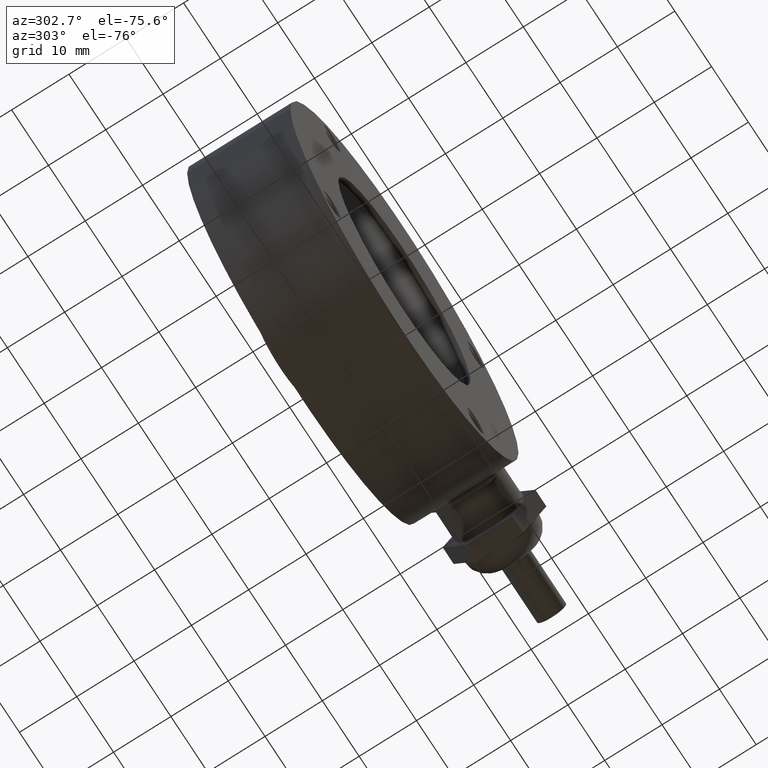
[diagram: clean part render]
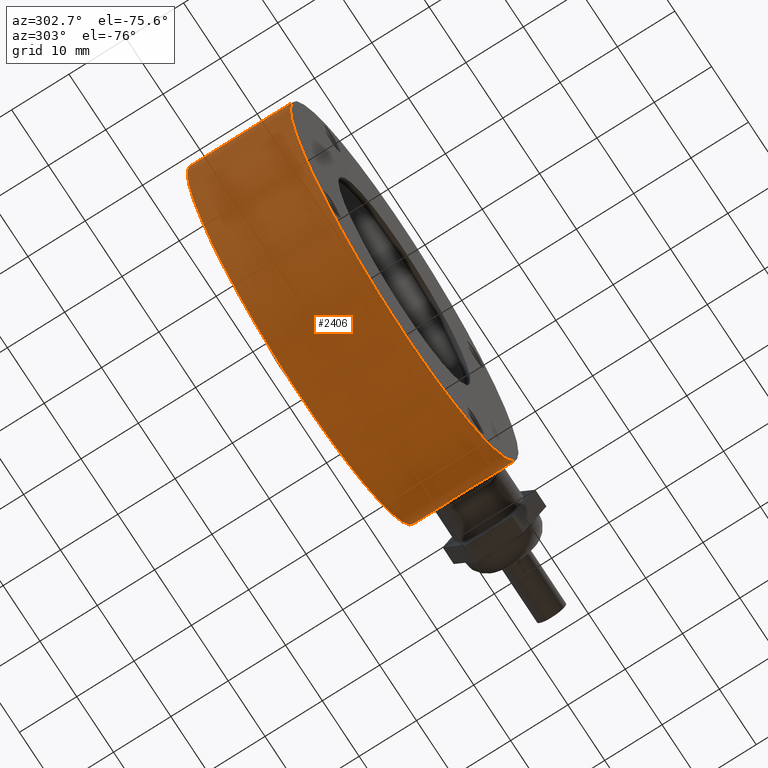
[diagram: same view with one face highlighted and labeled with its STEP entity id]
A machine part, auxiliary view. The second image highlights one B-rep face of the part: STEP entity #2406.
In plain terms, the highlighted cylindrical surface (bore or boss wall) has radius 31 mm, axis along (0, 1, 0).
Its self-contained STEP definition (entity closure, byte-faithful):
#169=B_SPLINE_CURVE_WITH_KNOTS('',3,(#5704,#5705,#5706,#5707,#5708,#5709,
#5710,#5711,#5712,#5713,#5714,#5715,#5716,#5717,#5718,#5719,#5720,#5721),
 .UNSPECIFIED.,.F.,.F.,(4,2,2,2,2,2,2,2,4),(1.27255433416778,1.59066188959782,
1.90876944502786,2.22693905668171,2.54510866833556,2.86327827998941,3.18144789164326,
3.4995554470733,3.81766300250334),.UNSPECIFIED.);
#170=B_SPLINE_CURVE_WITH_KNOTS('',3,(#5723,#5724,#5725,#5726,#5727,#5728,
#5729,#5730,#5731,#5732),.UNSPECIFIED.,.F.,.F.,(4,2,2,2,4),(5.09021733667112,
5.40838694832497,5.72655655997881,6.04466411540885,6.3627716708389),
 .UNSPECIFIED.);
#171=B_SPLINE_CURVE_WITH_KNOTS('',3,(#5736,#5737,#5738,#5739,#5740,#5741,
#5742,#5743,#5744,#5745),.UNSPECIFIED.,.F.,.F.,(4,2,2,2,4),(3.81766300250334,
4.13577055793338,4.45387811336342,4.77204772501727,5.09021733667112),
 .UNSPECIFIED.);
#218=FACE_BOUND('',#543,.T.);
#393=FACE_OUTER_BOUND('',#542,.T.);
#542=EDGE_LOOP('',(#2137,#2138,#2139,#2140));
#543=EDGE_LOOP('',(#2141,#2142,#2143));
#685=LINE('',#9421,#819);
#819=VECTOR('',#3100,31.);
#865=CIRCLE('',#2602,31.);
#866=CIRCLE('',#2603,31.);
#1081=VERTEX_POINT('',#5702);
#1082=VERTEX_POINT('',#5703);
#1083=VERTEX_POINT('',#5722);
#1095=VERTEX_POINT('',#9418);
#1096=VERTEX_POINT('',#9420);
#1397=EDGE_CURVE('',#1081,#1082,#169,.T.);
#1398=EDGE_CURVE('',#1083,#1081,#170,.T.);
#1401=EDGE_CURVE('',#1082,#1083,#171,.T.);
#1450=EDGE_CURVE('',#1095,#1095,#865,.T.);
#1451=EDGE_CURVE('',#1095,#1096,#685,.T.);
#1452=EDGE_CURVE('',#1096,#1096,#866,.T.);
#2137=ORIENTED_EDGE('',*,*,#1450,.F.);
#2138=ORIENTED_EDGE('',*,*,#1451,.T.);
#2139=ORIENTED_EDGE('',*,*,#1452,.T.);
#2140=ORIENTED_EDGE('',*,*,#1451,.F.);
#2141=ORIENTED_EDGE('',*,*,#1397,.T.);
#2142=ORIENTED_EDGE('',*,*,#1401,.T.);
#2143=ORIENTED_EDGE('',*,*,#1398,.T.);
#2265=CYLINDRICAL_SURFACE('',#2601,31.);
#2406=ADVANCED_FACE('',(#393,#218),#2265,.T.);
#2601=AXIS2_PLACEMENT_3D('',#9417,#3096,#3097);
#2602=AXIS2_PLACEMENT_3D('',#9419,#3098,#3099);
#2603=AXIS2_PLACEMENT_3D('',#9422,#3101,#3102);
#3096=DIRECTION('center_axis',(0.,1.,0.));
#3097=DIRECTION('ref_axis',(1.,0.,0.));
#3098=DIRECTION('center_axis',(0.,1.,0.));
#3099=DIRECTION('ref_axis',(1.,0.,0.));
#3100=DIRECTION('',(0.,-1.,0.));
#3101=DIRECTION('center_axis',(0.,1.,0.));
#3102=DIRECTION('ref_axis',(1.,0.,0.));
#5702=CARTESIAN_POINT('',(31.,17.4,0.));
#5703=CARTESIAN_POINT('',(31.,0.600000000000001,0.));
#5704=CARTESIAN_POINT('Ctrl Pts',(31.,17.4,-8.32667268468867E-16));
#5705=CARTESIAN_POINT('Ctrl Pts',(31.,17.4,-1.06035851810014));
#5706=CARTESIAN_POINT('Ctrl Pts',(30.9401730460414,17.1870061591324,-2.18783356796882));
#5707=CARTESIAN_POINT('Ctrl Pts',(30.7240630020135,16.3280835083566,-4.25592252687025));
#5708=CARTESIAN_POINT('Ctrl Pts',(30.5706455032096,15.6824404045655,-5.19695351936849));
#5709=CARTESIAN_POINT('Ctrl Pts',(30.2806203628075,14.1968086254403,-6.68258529849374));
#5710=CARTESIAN_POINT('Ctrl Pts',(30.1246649317882,13.2558374006011,-7.32811572417069));
#5711=CARTESIAN_POINT('Ctrl Pts',(29.9026834729294,11.1879624489679,-8.18695577094995));
#5712=CARTESIAN_POINT('Ctrl Pts',(29.8402412858878,10.0605653721795,-8.4));
#5713=CARTESIAN_POINT('Ctrl Pts',(29.8402412858878,7.9394346278205,-8.4));
#5714=CARTESIAN_POINT('Ctrl Pts',(29.9026834729294,6.81203755103207,-8.18695577094996));
#5715=CARTESIAN_POINT('Ctrl Pts',(30.1246649317882,4.74416259939886,-7.32811572417069));
#5716=CARTESIAN_POINT('Ctrl Pts',(30.2806203628075,3.80319137455974,-6.68258529849374));
#5717=CARTESIAN_POINT('Ctrl Pts',(30.5706455032096,2.3175595954345,-5.19695351936849));
#5718=CARTESIAN_POINT('Ctrl Pts',(30.7240630020135,1.67191649164337,-4.25592252687025));
#5719=CARTESIAN_POINT('Ctrl Pts',(30.9401730460414,0.812993840867605,-2.18783356796882));
#5720=CARTESIAN_POINT('Ctrl Pts',(31.,0.600000000000001,-1.06035851810013));
#5721=CARTESIAN_POINT('Ctrl Pts',(31.,0.600000000000001,1.94289029309402E-15));
#5722=CARTESIAN_POINT('',(29.8402412858878,9.,8.4));
#5723=CARTESIAN_POINT('Ctrl Pts',(29.8402412858878,9.,8.4));
#5724=CARTESIAN_POINT('Ctrl Pts',(29.8402412858878,10.0605653721795,8.4));
#5725=CARTESIAN_POINT('Ctrl Pts',(29.9026834729294,11.1879624489679,8.18695577094996));
#5726=CARTESIAN_POINT('Ctrl Pts',(30.1246649317882,13.2558374006011,7.32811572417069));
#5727=CARTESIAN_POINT('Ctrl Pts',(30.2806203628075,14.1968086254403,6.68258529849374));
#5728=CARTESIAN_POINT('Ctrl Pts',(30.5706455032096,15.6824404045655,5.19695351936849));
#5729=CARTESIAN_POINT('Ctrl Pts',(30.7240630020135,16.3280835083566,4.25592252687025));
#5730=CARTESIAN_POINT('Ctrl Pts',(30.9401730460414,17.1870061591324,2.18783356796882));
#5731=CARTESIAN_POINT('Ctrl Pts',(31.,17.4,1.06035851810013));
#5732=CARTESIAN_POINT('Ctrl Pts',(31.,17.4,-5.55111512312578E-16));
#5736=CARTESIAN_POINT('Ctrl Pts',(31.,0.600000000000001,-8.32667268468867E-16));
#5737=CARTESIAN_POINT('Ctrl Pts',(31.,0.600000000000001,1.06035851810014));
#5738=CARTESIAN_POINT('Ctrl Pts',(30.9401730460414,0.812993840867605,2.18783356796882));
#5739=CARTESIAN_POINT('Ctrl Pts',(30.7240630020135,1.67191649164338,4.25592252687025));
#5740=CARTESIAN_POINT('Ctrl Pts',(30.5706455032096,2.3175595954345,5.19695351936849));
#5741=CARTESIAN_POINT('Ctrl Pts',(30.2806203628075,3.80319137455974,6.68258529849374));
#5742=CARTESIAN_POINT('Ctrl Pts',(30.1246649317882,4.74416259939886,7.32811572417069));
#5743=CARTESIAN_POINT('Ctrl Pts',(29.9026834729294,6.81203755103208,8.18695577094996));
#5744=CARTESIAN_POINT('Ctrl Pts',(29.8402412858878,7.93943462782051,8.4));
#5745=CARTESIAN_POINT('Ctrl Pts',(29.8402412858878,9.,8.4));
#9417=CARTESIAN_POINT('Origin',(0.,0.,0.));
#9418=CARTESIAN_POINT('',(-31.,18.,3.7964050773568E-15));
#9419=CARTESIAN_POINT('Origin',(0.,18.,0.));
#9420=CARTESIAN_POINT('',(-31.,0.,3.7964050773568E-15));
#9421=CARTESIAN_POINT('',(-31.,0.,3.7964050773568E-15));
#9422=CARTESIAN_POINT('Origin',(0.,0.,0.));